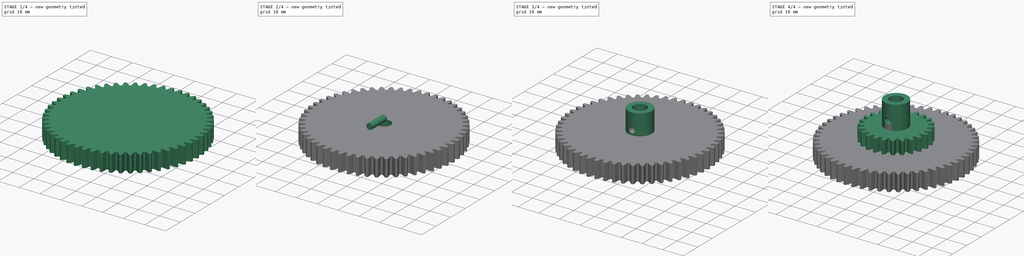
[diagram: build sequence overview — one tinted view per stage of 4, left to right]
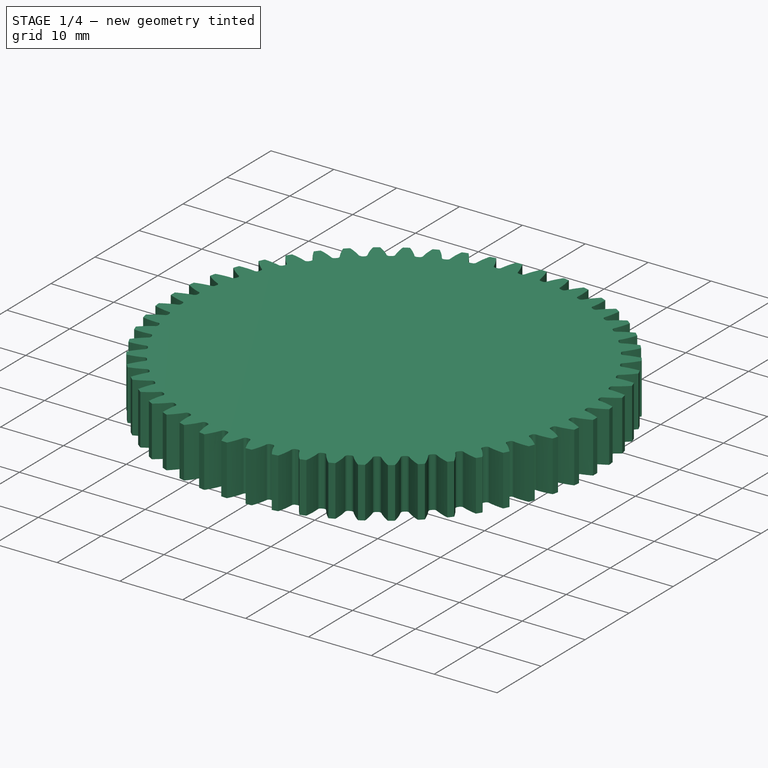
[diagram: stage 1 of 4 — iso view after this stage's code; geometry added in this stage tinted green]
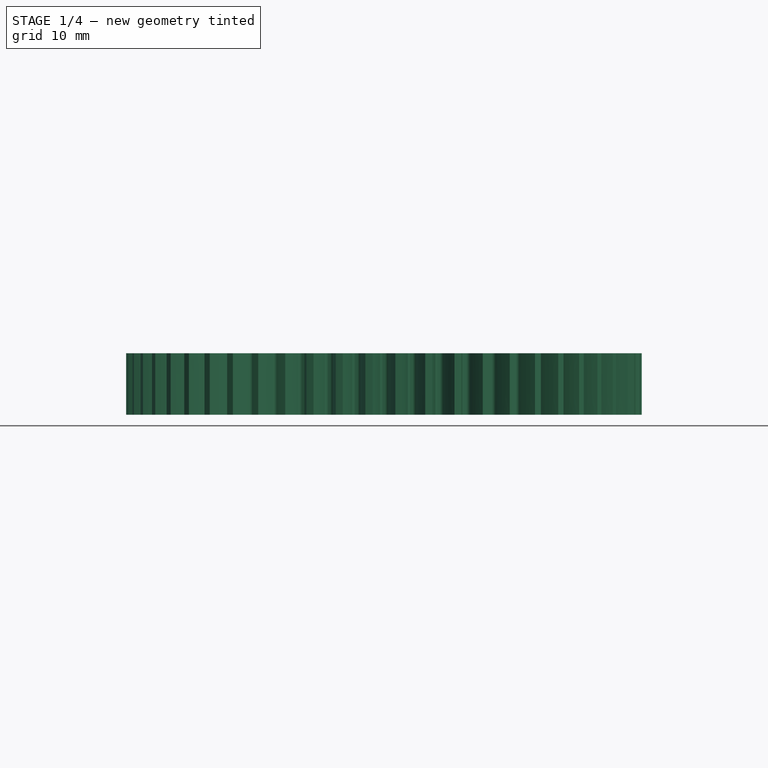
[diagram: stage 1 of 4 — front view after this stage's code; geometry added in this stage tinted green]
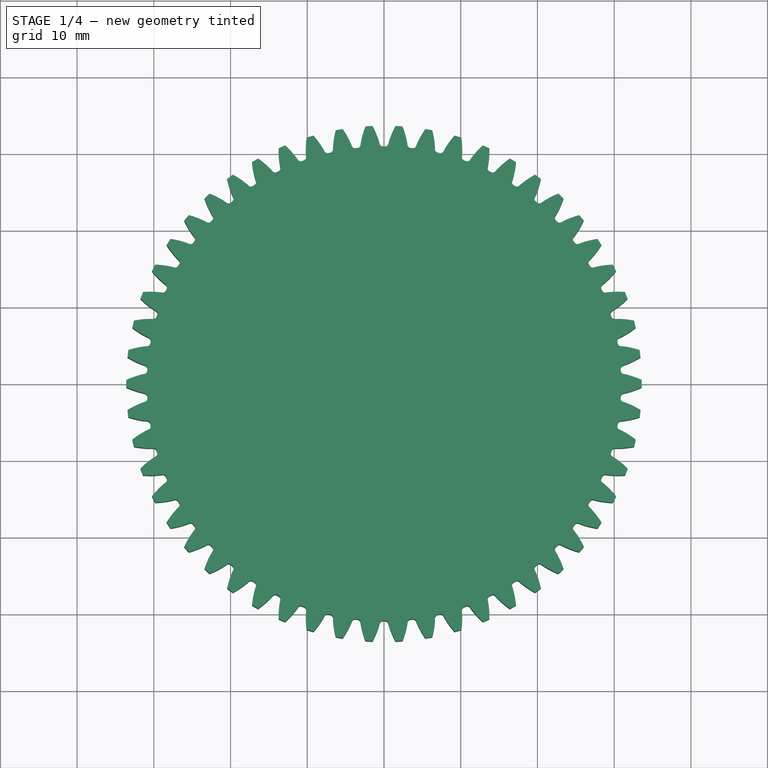
[diagram: stage 1 of 4 — top view after this stage's code; geometry added in this stage tinted green]
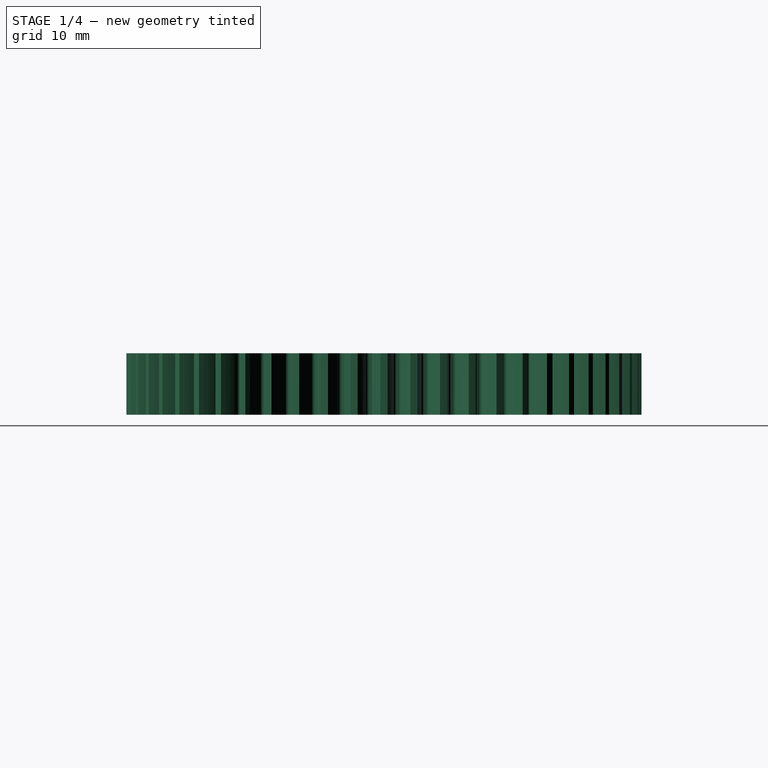
[diagram: stage 1 of 4 — right view after this stage's code; geometry added in this stage tinted green]
FCSTD DOCUMENT  (FreeCAD 0.16R6712 (Git))
Label: gear-ra-handle
License: All rights reserved
LicenseURL: http://en.wikipedia.org/wiki/All_rights_reserved
objects: Sketcher::SketchObject×3, Part::Cut×3, PartDesign::Pad×3, Part::MultiFuse×3, Part::Part2DObjectPython×2, Part::Extrusion×2, App::DocumentObjectGroup×2, Part::FeaturePython×1
note: 20 computed .brp shape members not serialized (recipe doc carries the construction recipe); baked Part::Feature solids carry a one-line shape summary decoded from their .brp

FEATURE [Part::Part2DObjectPython] InvoluteGear  # Draft 2D object (typed FeaturePython)
  ExternalGear = true
  HighPrecision = true
  Modules = 1.2
  NumberOfTeeth = 24
  PressureAngle = 20
FEATURE [Sketcher::SketchObject] Sketch
  sketch-geometry (1):
    g0: ArcOfCircle CenterX=0 CenterY=0 CenterZ=0 NormalX=0 NormalY=0 NormalZ=1 Radius=3.2 StartAngle=0.11341 EndAngle=0.11341
  constraints (3):
    c: Coincident(g0,g-1)
    c: Radius(g0) = 3.2
    c: Angle(g0) = 6.28319
FEATURE [Part::Extrusion] Extrude
  Base = -> InvoluteGear
  Dir = (0,0,6.3)
  Solid = true
FEATURE [Part::Part2DObjectPython] InvoluteGear001  # Draft 2D object (typed FeaturePython)
  ExternalGear = true
  HighPrecision = true
  Modules = 1.2
  NumberOfTeeth = 54
  PressureAngle = 20
FEATURE [PartDesign::Pad] Pad002
  Length = 8
  Length2 = 100
  Sketch = -> InvoluteGear001
  Type = 0
FEATURE [Part::MultiFuse] Fusion001
  Shapes = -> [Pad002,Extrude]
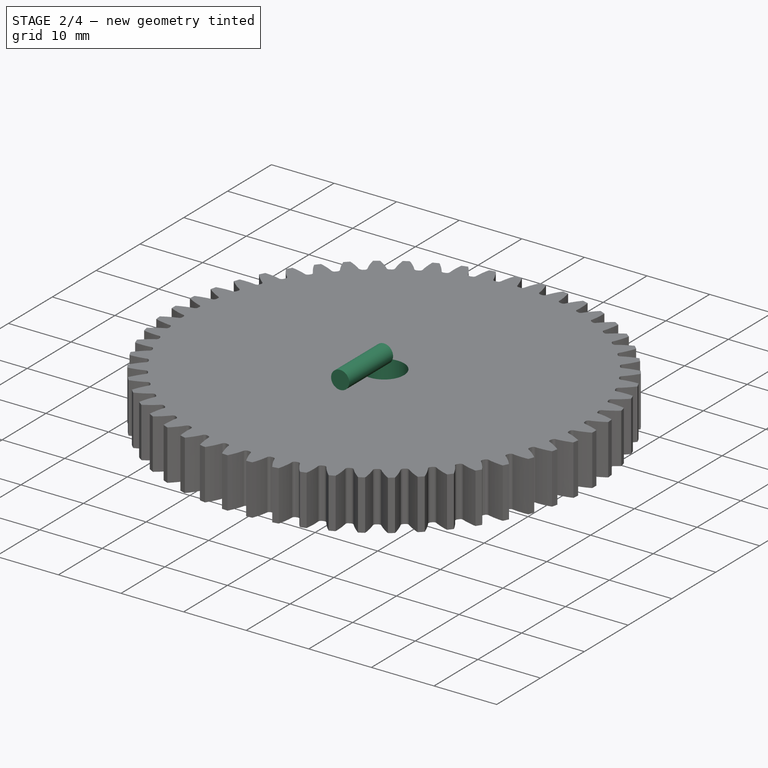
[diagram: stage 2 of 4 — iso view after this stage's code; geometry added in this stage tinted green]
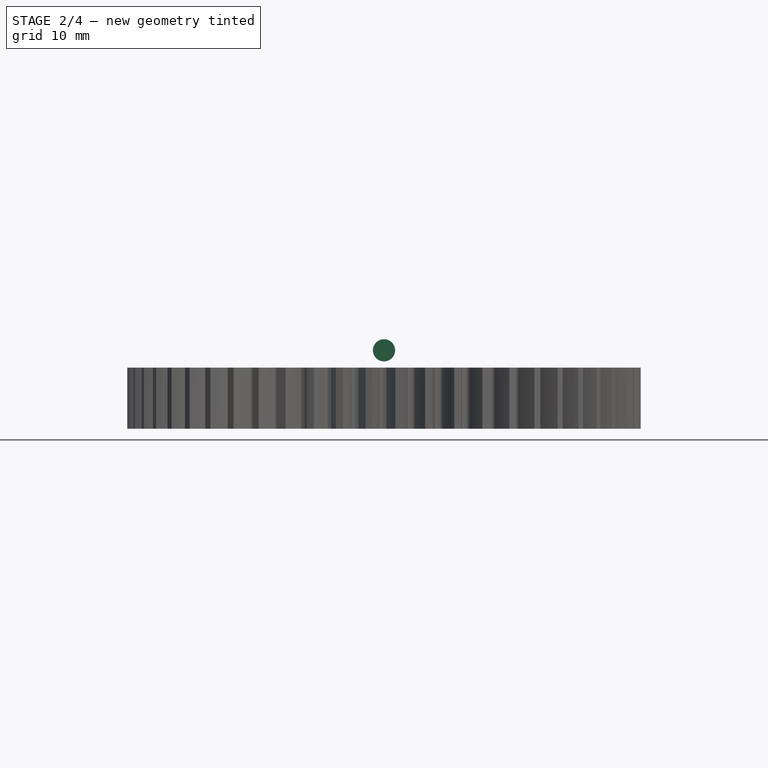
[diagram: stage 2 of 4 — front view after this stage's code; geometry added in this stage tinted green]
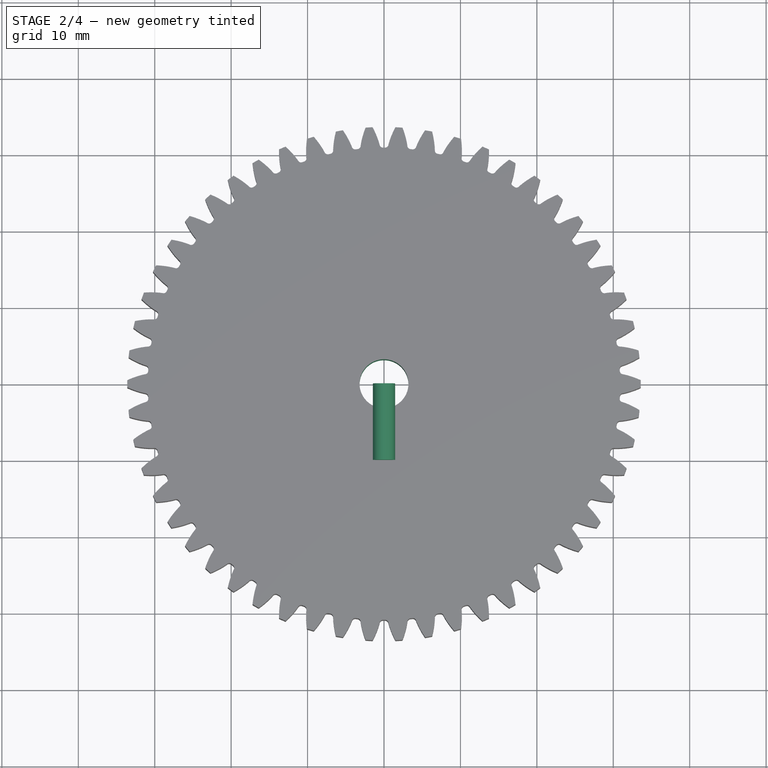
[diagram: stage 2 of 4 — top view after this stage's code; geometry added in this stage tinted green]
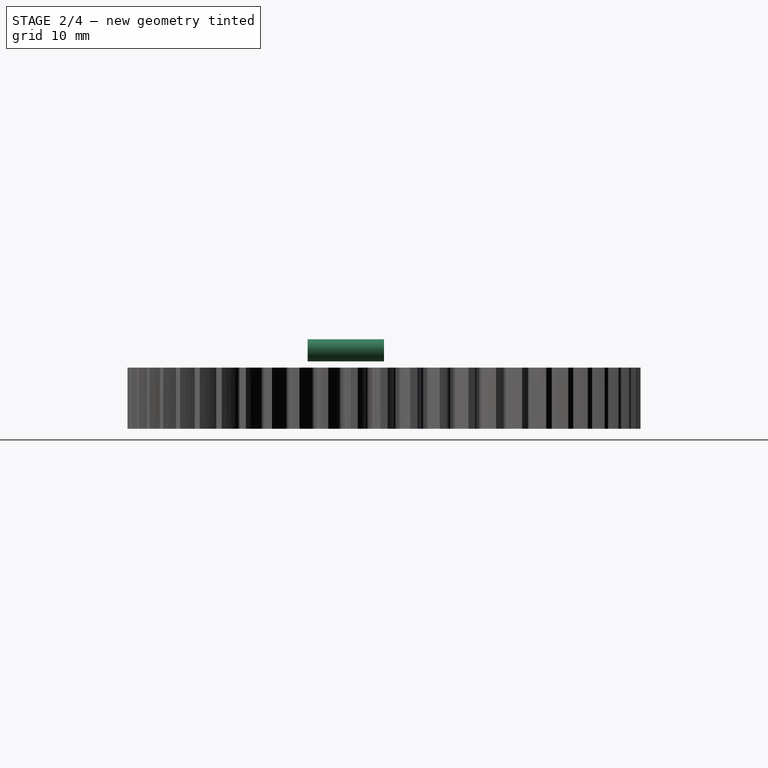
[diagram: stage 2 of 4 — right view after this stage's code; geometry added in this stage tinted green]
FEATURE [Part::Extrusion] Extrude001
  Base = -> Sketch
  Dir = (0,0,14.3)
  Solid = true
FEATURE [Sketcher::SketchObject] Sketch002
  Placement = pos=(0,0,0) rot=(1,0,0;1.5708rad)
  sketch-geometry (1):
    g0: Circle CenterX=0 CenterY=10.2755 CenterZ=0 NormalX=0 NormalY=0 NormalZ=1 Radius=1.45
  constraints (1):
    c: Radius(g0) = 1.45
FEATURE [PartDesign::Pad] Pad001
  Length = 10
  Length2 = 100
  Placement = pos=(0,0,0) rot=(1,0,0;1.5708rad)
  Sketch = -> Sketch002
  Type = 0
FEATURE [Part::Cut] Cut002
  Base = -> Fusion001
  Tool = -> Extrude001
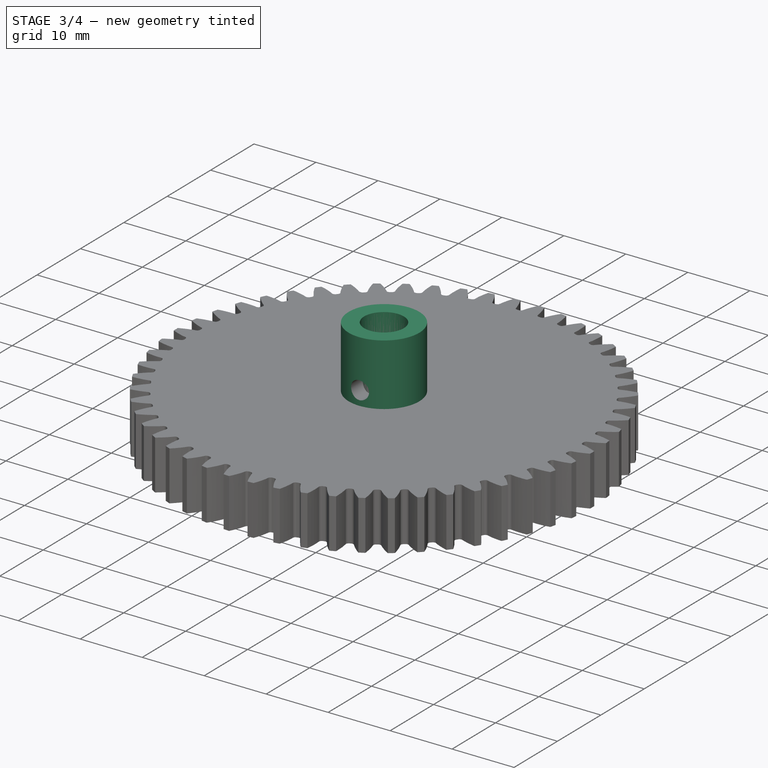
[diagram: stage 3 of 4 — iso view after this stage's code; geometry added in this stage tinted green]
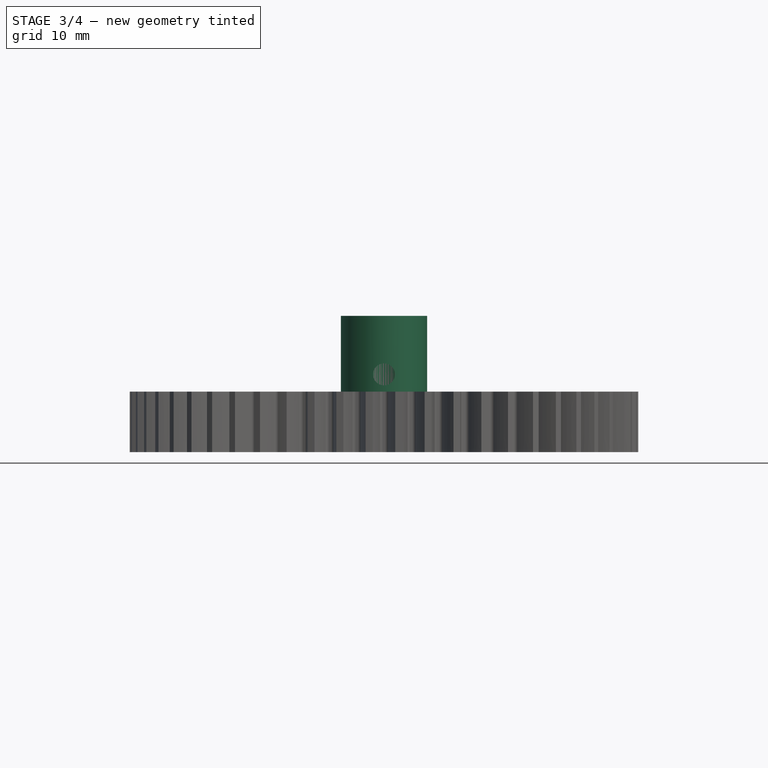
[diagram: stage 3 of 4 — front view after this stage's code; geometry added in this stage tinted green]
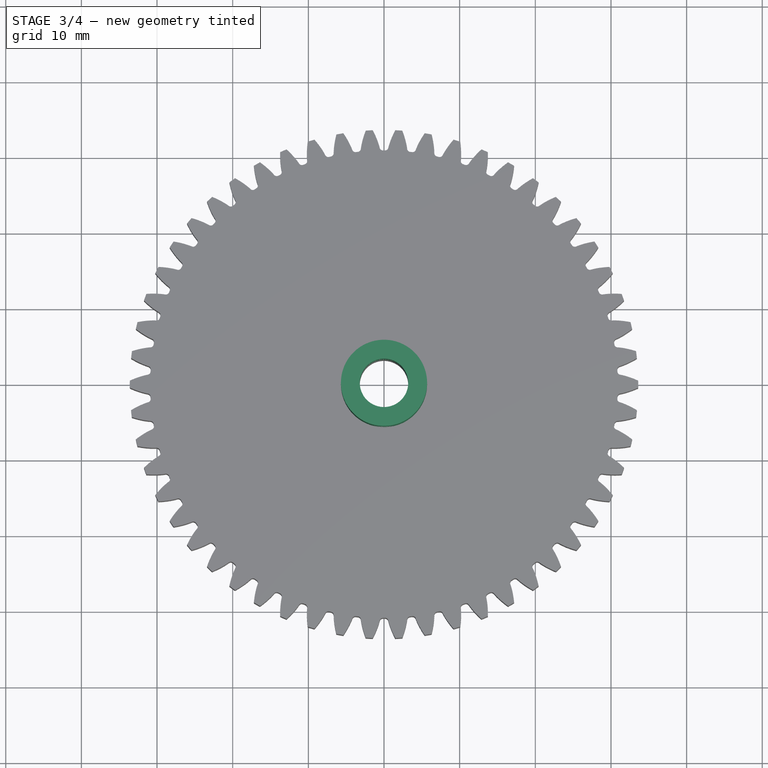
[diagram: stage 3 of 4 — top view after this stage's code; geometry added in this stage tinted green]
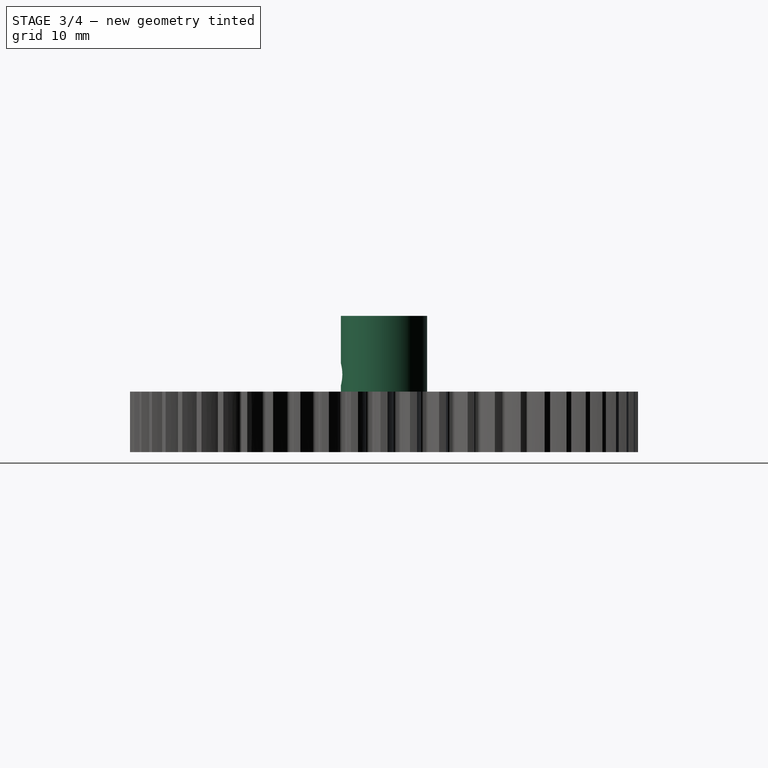
[diagram: stage 3 of 4 — right view after this stage's code; geometry added in this stage tinted green]
FEATURE [Part::Cut] Cut
  Base = -> Extrude
  Tool = -> Extrude001
FEATURE [App::DocumentObjectGroup] ___  label="cylender"
FEATURE [Sketcher::SketchObject] Sketch001
  sketch-geometry (2):
    g0: Circle CenterX=0 CenterY=0 CenterZ=0 NormalX=0 NormalY=0 NormalZ=1 Radius=5.69611
    g1: Circle CenterX=0 CenterY=0 CenterZ=0 NormalX=0 NormalY=0 NormalZ=1 Radius=3.2
  constraints (2):
    c: Radius(g0) = 5.69611
    c: Radius(g1) = 3.2
FEATURE [PartDesign::Pad] Pad
  Length = 18
  Length2 = 10
  Sketch = -> Sketch001
  Type = 0
FEATURE [Part::Cut] Cut001
  Base = -> Pad
  Tool = -> Pad001
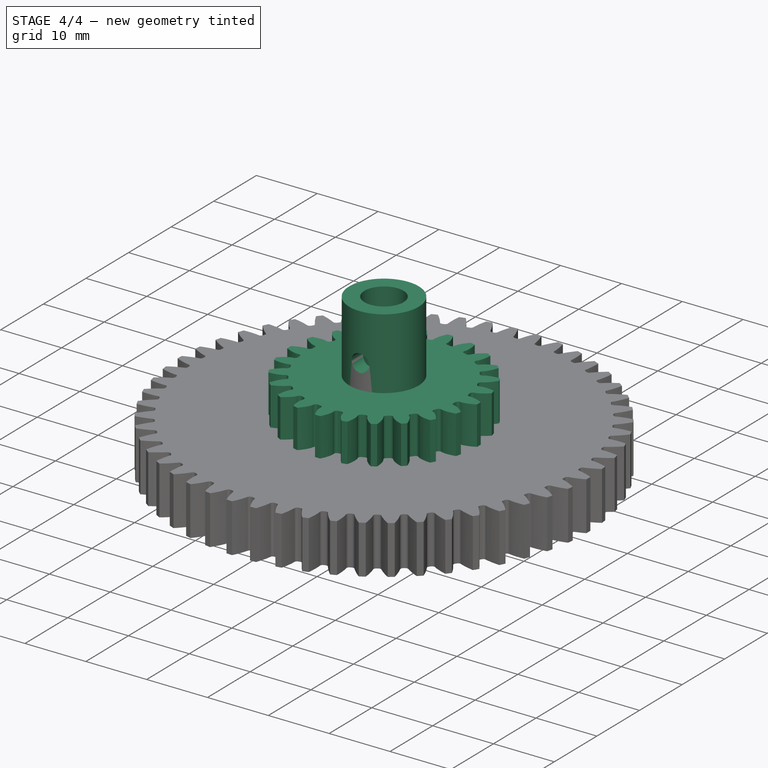
[diagram: stage 4 of 4 — iso view after this stage's code; geometry added in this stage tinted green]
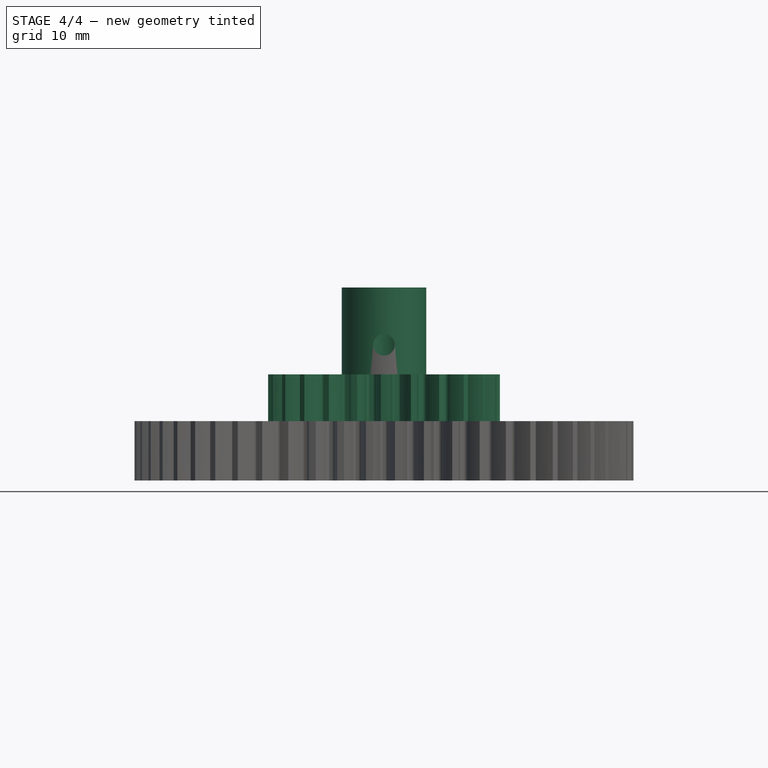
[diagram: stage 4 of 4 — front view after this stage's code; geometry added in this stage tinted green]
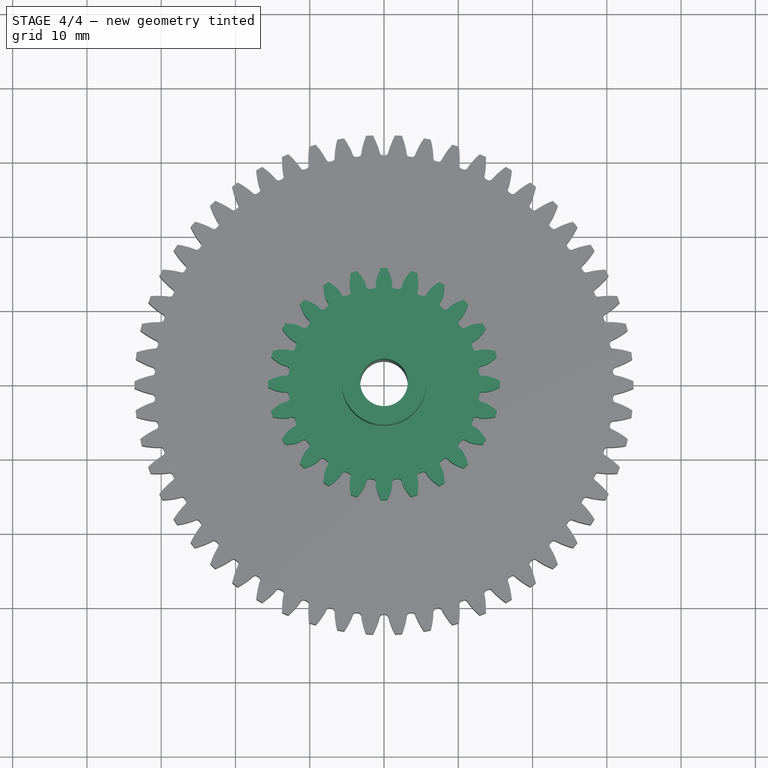
[diagram: stage 4 of 4 — top view after this stage's code; geometry added in this stage tinted green]
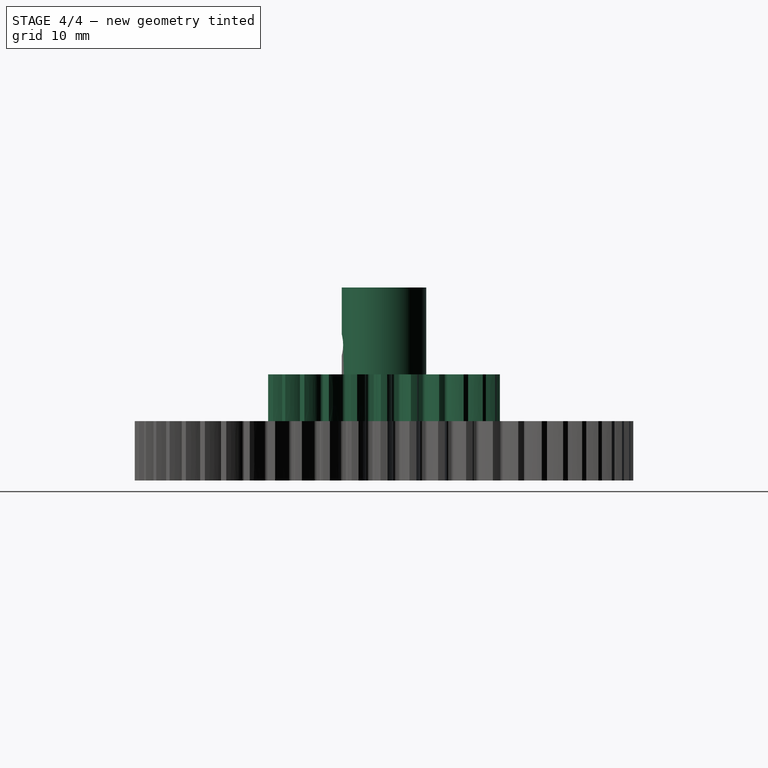
[diagram: stage 4 of 4 — right view after this stage's code; geometry added in this stage tinted green]
FEATURE [Part::MultiFuse] Fusion
  Placement = pos=(0,0,8) rot=(0,0,1;0rad)
  Shapes = -> [Cut,Cut001]
FEATURE [Part::FeaturePython] refine  label="refine_Fusion"  # WARN: FeaturePython — macro-defined, semantics opaque (R4)
  Base = -> Fusion
FEATURE [Part::MultiFuse] Fusion002
  Shapes = -> [Fusion,Cut002]
FEATURE [App::DocumentObjectGroup] ___001  label="largegear"
  Group = -> [Fusion002]
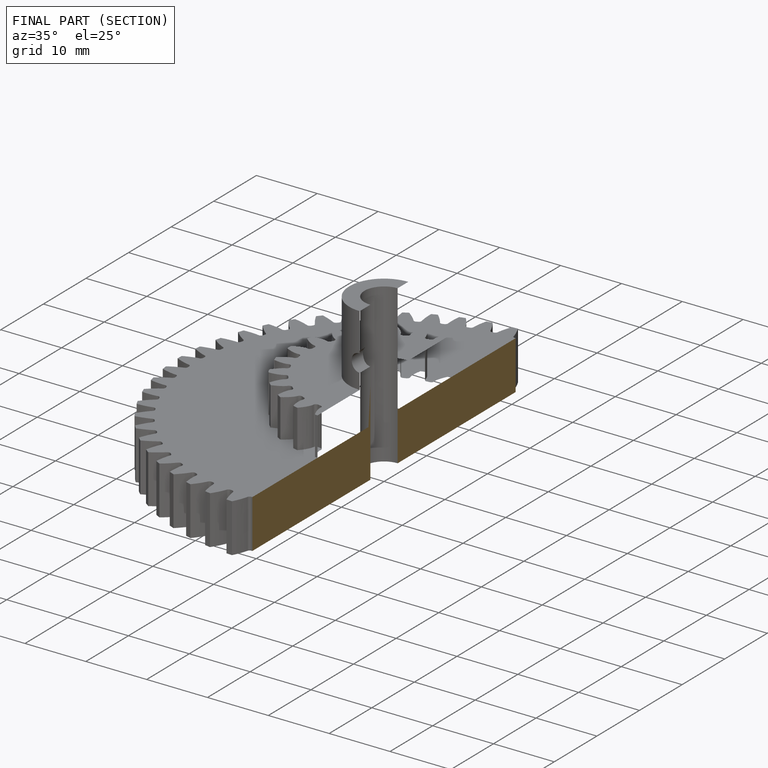
[diagram: finished part — half-section view (interior)]
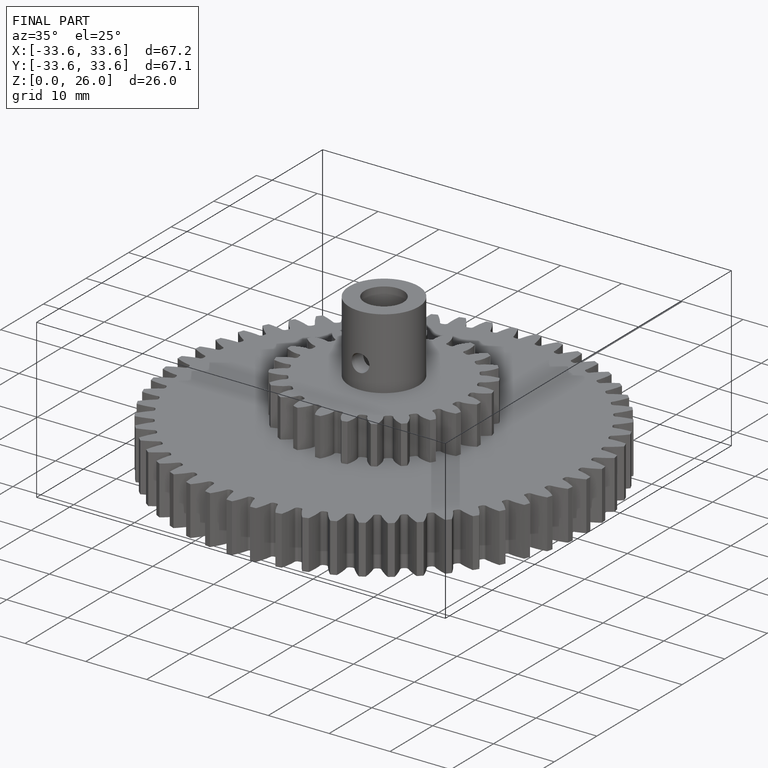
[diagram: finished part — iso view with bounding-box wireframe]
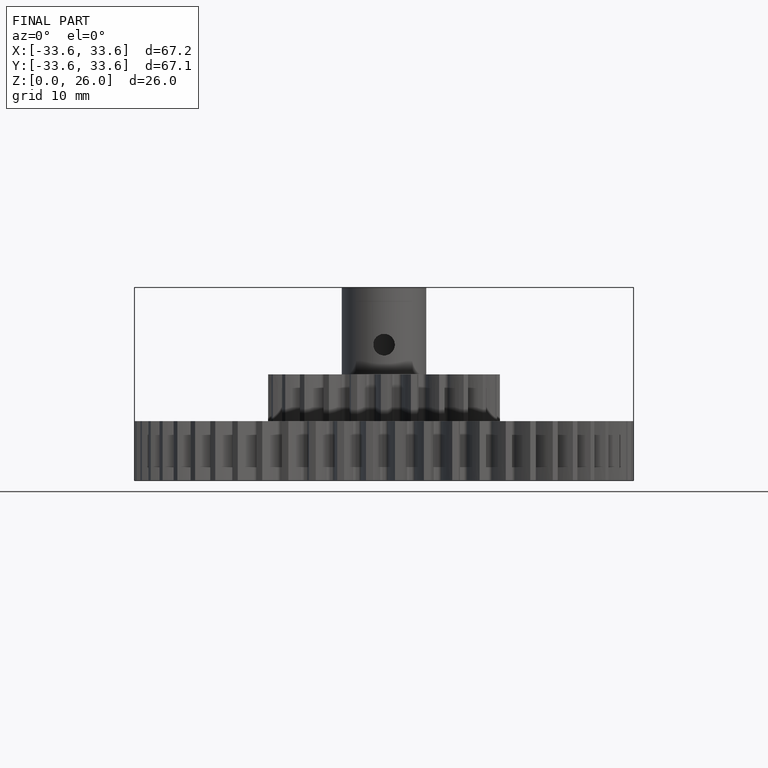
[diagram: finished part — front view with bounding-box wireframe]
